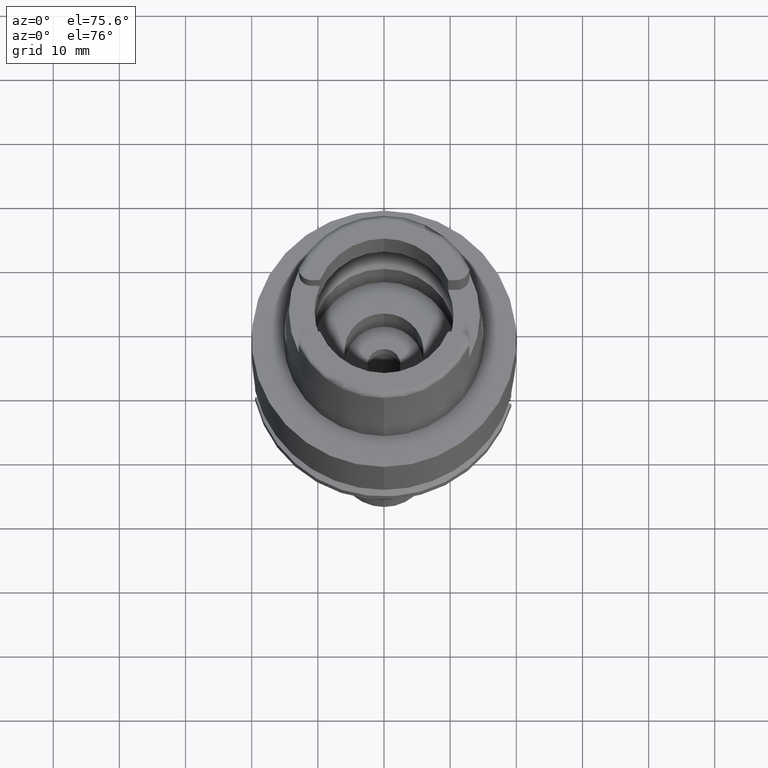
[diagram: clean part render]
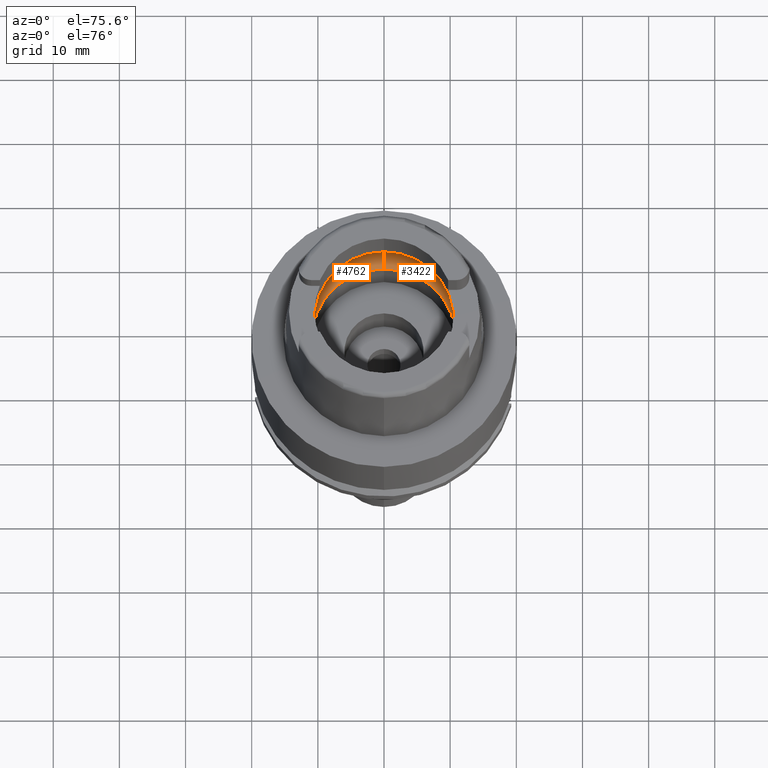
[diagram: same view with one multi-face feature highlighted, each face labeled with its STEP entity id]
A machine part, auxiliary view. The highlighted faces form ONE feature: a constant-radius fillet chain: 2 tangent blend faces with common blend radius 5 mm. The faces share edges in the B-rep.
Their STEP definitions:
[1] entity #3422 (Torus):
#13 = CARTESIAN_POINT ( 'NONE',  ( 0.0000000000000000000, 1.272815980657999902E-14, 3.933312163512999504 ) ) ;
#20 = AXIS2_PLACEMENT_3D ( 'NONE', #3113, #2683, #3487 ) ;
#76 = CARTESIAN_POINT ( 'NONE',  ( 12.74221291684999890, -0.3492184789958999724, 3.717717192588000152 ) ) ;
#383 = AXIS2_PLACEMENT_3D ( 'NONE', #3685, #1278, #1657 ) ;
#504 = CIRCLE ( 'NONE', #1451, 10.90000000000000036 ) ;
#508 = CARTESIAN_POINT ( 'NONE',  ( 12.74455357708000136, 0.1164895916260999947, 3.700000000000000178 ) ) ;
#532 = ORIENTED_EDGE ( 'NONE', *, *, #3559, .F. ) ;
#633 = ORIENTED_EDGE ( 'NONE', *, *, #4525, .F. ) ;
#662 = CARTESIAN_POINT ( 'NONE',  ( 12.74455357708000136, 0.0000000000000000000, 3.700000000000000178 ) ) ;
#683 = CARTESIAN_POINT ( 'NONE',  ( 12.70998420979999999, -1.009356917307999923, 3.933312163512999504 ) ) ;
#691 = EDGE_CURVE ( 'NONE', #2313, #928, #2405, .T. ) ;
#743 = CARTESIAN_POINT ( 'NONE',  ( 0.0000000000000000000, 1.272815980657999902E-14, 3.933312163512999504 ) ) ;
#847 = CARTESIAN_POINT ( 'NONE',  ( 12.70998420979999999, -1.009356917307999923, 3.933312163512999504 ) ) ;
#864 = DIRECTION ( 'NONE',  ( 0.0000000000000000000, -1.000000000000000000, 0.0000000000000000000 ) ) ;
#928 = VERTEX_POINT ( 'NONE', #2906 ) ;
#1278 = DIRECTION ( 'NONE',  ( 1.000000000000000000, 0.0000000000000000000, 0.0000000000000000000 ) ) ;
#1451 = AXIS2_PLACEMENT_3D ( 'NONE', #3326, #3649, #864 ) ;
#1495 = CIRCLE ( 'NONE', #4060, 12.75000000000000000 ) ;
#1522 = ORIENTED_EDGE ( 'NONE', *, *, #691, .F. ) ;
#1657 = DIRECTION ( 'NONE',  ( 0.0000000000000000000, 0.6299999999999791322, -0.7765951326141738997 ) ) ;
#1701 = CARTESIAN_POINT ( 'NONE',  ( 12.74455357708000136, 0.0000000000000000000, 3.700000000000000178 ) ) ;
#1757 = CARTESIAN_POINT ( 'NONE',  ( 0.0000000000000000000, -10.90000000000000036, 0.05033650044222000297 ) ) ;
#1852 = EDGE_CURVE ( 'NONE', #3438, #3245, #2926, .T. ) ;
#1938 = CARTESIAN_POINT ( 'NONE',  ( 12.70998420979999999, 1.009356917307000057, 3.933312163512999504 ) ) ;
#2040 = CARTESIAN_POINT ( 'NONE',  ( 12.74221291712999893, 0.3492178183419999971, 3.717717179960999818 ) ) ;
#2313 = VERTEX_POINT ( 'NONE', #4342 ) ;
#2360 = DIRECTION ( 'NONE',  ( 0.0000000000000000000, -1.000000000000000000, 0.0000000000000000000 ) ) ;
#2368 = VERTEX_POINT ( 'NONE', #683 ) ;
#2405 = CIRCLE ( 'NONE', #383, 5.000000000000000888 ) ;
#2464 = CARTESIAN_POINT ( 'NONE',  ( 12.70998420979999999, 1.009356917307000057, 3.933312163512999504 ) ) ;
#2592 = ORIENTED_EDGE ( 'NONE', *, *, #4478, .T. ) ;
#2683 = DIRECTION ( 'NONE',  ( -1.000000000000000000, 0.0000000000000000000, 0.0000000000000000000 ) ) ;
#2750 = CIRCLE ( 'NONE', #3694, 12.75000000000000533 ) ;
#2794 = ORIENTED_EDGE ( 'NONE', *, *, #5023, .F. ) ;
#2838 = DIRECTION ( 'NONE',  ( 0.0000000000000000000, 0.0000000000000000000, -1.000000000000000000 ) ) ;
#2906 = CARTESIAN_POINT ( 'NONE',  ( 0.0000000000000000000, 12.75000000000000000, 3.933312163512999504 ) ) ;
#2921 = CARTESIAN_POINT ( 'NONE',  ( 12.71822602740000185, -0.9055746280688999894, 3.882625567459000226 ) ) ;
#2926 = B_SPLINE_CURVE_WITH_KNOTS ( 'NONE', 3,
 ( #2464, #2955, #3253, #2040, #508, #1701 ),
 .UNSPECIFIED., .F., .F.,
 ( 4, 1, 1, 4 ),
 ( 0.0000000000000000000, 0.3333333333333000081, 0.6666666666667000474, 1.000000000000000000 ),
 .UNSPECIFIED. ) ;
#2955 = CARTESIAN_POINT ( 'NONE',  ( 12.71822610548000121, 0.9055736448555999907, 3.882625087264000019 ) ) ;
#2976 = VERTEX_POINT ( 'NONE', #1757 ) ;
#3087 = DIRECTION ( 'NONE',  ( 0.0000000000000000000, 1.000000000000000000, 0.0000000000000000000 ) ) ;
#3113 = CARTESIAN_POINT ( 'NONE',  ( 0.0000000000000000000, -7.750000000000000000, 3.933312163512999504 ) ) ;
#3124 = TOROIDAL_SURFACE ( 'NONE', #4481, 7.750000000000000000, 5.000000000000000000 ) ;
#3149 = DIRECTION ( 'NONE',  ( 0.0000000000000000000, 0.0000000000000000000, -1.000000000000000000 ) ) ;
#3213 = B_SPLINE_CURVE_WITH_KNOTS ( 'NONE', 3,
 ( #662, #5034, #76, #4110, #2921, #847 ),
 .UNSPECIFIED., .F., .F.,
 ( 4, 1, 1, 4 ),
 ( 0.0000000000000000000, 0.3333333333333000081, 0.6666666666667000474, 1.000000000000000000 ),
 .UNSPECIFIED. ) ;
#3245 = VERTEX_POINT ( 'NONE', #4850 ) ;
#3253 = CARTESIAN_POINT ( 'NONE',  ( 12.73125754741000115, 0.6899575664910999606, 3.796706144840999997 ) ) ;
#3326 = CARTESIAN_POINT ( 'NONE',  ( 0.0000000000000000000, 1.272815980657999902E-14, 0.05033650044222000297 ) ) ;
#3393 = EDGE_CURVE ( 'NONE', #928, #3438, #1495, .T. ) ;
#3422 = ADVANCED_FACE ( 'NONE', ( #4898 ), #3124, .F. ) ;
#3438 = VERTEX_POINT ( 'NONE', #1938 ) ;
#3487 = DIRECTION ( 'NONE',  ( 0.0000000000000000000, -0.6299999999999791322, -0.7765951326141738997 ) ) ;
#3559 = EDGE_CURVE ( 'NONE', #2368, #3910, #2750, .T. ) ;
#3649 = DIRECTION ( 'NONE',  ( 0.0000000000000000000, 0.0000000000000000000, 1.000000000000000000 ) ) ;
#3671 = DIRECTION ( 'NONE',  ( 0.0000000000000000000, 0.0000000000000000000, -1.000000000000000000 ) ) ;
#3685 = CARTESIAN_POINT ( 'NONE',  ( 0.0000000000000000000, 7.750000000000000000, 3.933312163512999504 ) ) ;
#3694 = AXIS2_PLACEMENT_3D ( 'NONE', #743, #3671, #4003 ) ;
#3768 = ORIENTED_EDGE ( 'NONE', *, *, #1852, .F. ) ;
#3910 = VERTEX_POINT ( 'NONE', #5094 ) ;
#4003 = DIRECTION ( 'NONE',  ( 0.9968615066513395462, -0.07916524841634305087, 0.0000000000000000000 ) ) ;
#4060 = AXIS2_PLACEMENT_3D ( 'NONE', #5180, #3149, #3087 ) ;
#4110 = CARTESIAN_POINT ( 'NONE',  ( 12.73125744058999942, -0.6899600012526999615, 3.796706888550000158 ) ) ;
#4331 = EDGE_LOOP ( 'NONE', ( #3768, #4382, #1522, #2794, #2592, #532, #633 ) ) ;
#4342 = CARTESIAN_POINT ( 'NONE',  ( 0.0000000000000000000, 10.90000000000000036, 0.05033650044222000297 ) ) ;
#4382 = ORIENTED_EDGE ( 'NONE', *, *, #3393, .F. ) ;
#4478 = EDGE_CURVE ( 'NONE', #2976, #3910, #4797, .T. ) ;
#4481 = AXIS2_PLACEMENT_3D ( 'NONE', #13, #2838, #2360 ) ;
#4525 = EDGE_CURVE ( 'NONE', #3245, #2368, #3213, .T. ) ;
#4797 = CIRCLE ( 'NONE', #20, 5.000000000000000888 ) ;
#4850 = CARTESIAN_POINT ( 'NONE',  ( 12.74455357708000136, 0.0000000000000000000, 3.700000000000000178 ) ) ;
#4898 = FACE_OUTER_BOUND ( 'NONE', #4331, .T. ) ;
#5023 = EDGE_CURVE ( 'NONE', #2976, #2313, #504, .T. ) ;
#5034 = CARTESIAN_POINT ( 'NONE',  ( 12.74455357708000136, -0.1164898603219999829, 3.700000000000000178 ) ) ;
#5094 = CARTESIAN_POINT ( 'NONE',  ( 0.0000000000000000000, -12.75000000000000000, 3.933312163512999504 ) ) ;
#5180 = CARTESIAN_POINT ( 'NONE',  ( 0.0000000000000000000, 1.272815980657999902E-14, 3.933312163512999504 ) ) ;
[2] entity #4762 (Torus):
#20 = AXIS2_PLACEMENT_3D ( 'NONE', #3113, #2683, #3487 ) ;
#271 = DIRECTION ( 'NONE',  ( 0.0000000000000000000, 0.0000000000000000000, -1.000000000000000000 ) ) ;
#316 = VERTEX_POINT ( 'NONE', #2246 ) ;
#329 = DIRECTION ( 'NONE',  ( 0.0000000000000000000, 0.0000000000000000000, -1.000000000000000000 ) ) ;
#352 = CARTESIAN_POINT ( 'NONE',  ( -12.74221290559999886, 0.3492184865941000416, 3.717717267404999859 ) ) ;
#383 = AXIS2_PLACEMENT_3D ( 'NONE', #3685, #1278, #1657 ) ;
#400 = CARTESIAN_POINT ( 'NONE',  ( -12.74455357708000136, 0.1164898789877999996, 3.700000000000000178 ) ) ;
#456 = EDGE_CURVE ( 'NONE', #2313, #2976, #4381, .T. ) ;
#546 = CARTESIAN_POINT ( 'NONE',  ( -12.73125747192000112, -0.6899593579563000345, 3.796706671708999892 ) ) ;
#604 = EDGE_LOOP ( 'NONE', ( #3016, #1437, #2729, #1184, #2520, #1892, #1124 ) ) ;
#691 = EDGE_CURVE ( 'NONE', #2313, #928, #2405, .T. ) ;
#894 = B_SPLINE_CURVE_WITH_KNOTS ( 'NONE', 3,
 ( #1639, #400, #352, #5275, #3648, #2408 ),
 .UNSPECIFIED., .F., .F.,
 ( 4, 1, 1, 4 ),
 ( 0.0000000000000000000, 0.3333333333333000081, 0.6666666666667000474, 1.000000000000000000 ),
 .UNSPECIFIED. ) ;
#928 = VERTEX_POINT ( 'NONE', #2906 ) ;
#1078 = AXIS2_PLACEMENT_3D ( 'NONE', #1880, #329, #1856 ) ;
#1124 = ORIENTED_EDGE ( 'NONE', *, *, #2645, .F. ) ;
#1184 = ORIENTED_EDGE ( 'NONE', *, *, #691, .T. ) ;
#1278 = DIRECTION ( 'NONE',  ( 1.000000000000000000, 0.0000000000000000000, 0.0000000000000000000 ) ) ;
#1361 = CARTESIAN_POINT ( 'NONE',  ( -12.70998420979999999, -1.009356917307999923, 3.933312163512999504 ) ) ;
#1404 = VERTEX_POINT ( 'NONE', #3764 ) ;
#1437 = ORIENTED_EDGE ( 'NONE', *, *, #4478, .F. ) ;
#1592 = CIRCLE ( 'NONE', #4581, 12.75000000000000000 ) ;
#1639 = CARTESIAN_POINT ( 'NONE',  ( -12.74455357708000136, 0.0000000000000000000, 3.700000000000000178 ) ) ;
#1657 = DIRECTION ( 'NONE',  ( 0.0000000000000000000, 0.6299999999999791322, -0.7765951326141738997 ) ) ;
#1727 = TOROIDAL_SURFACE ( 'NONE', #3606, 7.750000000000000000, 5.000000000000000000 ) ;
#1757 = CARTESIAN_POINT ( 'NONE',  ( 0.0000000000000000000, -10.90000000000000036, 0.05033650044222000297 ) ) ;
#1856 = DIRECTION ( 'NONE',  ( -0.9968615066513395462, 0.07916524841634305087, 0.0000000000000000000 ) ) ;
#1858 = FACE_OUTER_BOUND ( 'NONE', #604, .T. ) ;
#1880 = CARTESIAN_POINT ( 'NONE',  ( 0.0000000000000000000, 1.272815980657999902E-14, 3.933312163512999504 ) ) ;
#1892 = ORIENTED_EDGE ( 'NONE', *, *, #3461, .F. ) ;
#2170 = CIRCLE ( 'NONE', #1078, 12.75000000000000533 ) ;
#2245 = EDGE_CURVE ( 'NONE', #3910, #2289, #1592, .T. ) ;
#2246 = CARTESIAN_POINT ( 'NONE',  ( -12.74455357708000136, 0.0000000000000000000, 3.700000000000000178 ) ) ;
#2276 = DIRECTION ( 'NONE',  ( 0.0000000000000000000, -1.000000000000000000, 0.0000000000000000000 ) ) ;
#2289 = VERTEX_POINT ( 'NONE', #3890 ) ;
#2313 = VERTEX_POINT ( 'NONE', #4342 ) ;
#2353 = DIRECTION ( 'NONE',  ( 0.0000000000000000000, 1.000000000000000000, 0.0000000000000000000 ) ) ;
#2405 = CIRCLE ( 'NONE', #383, 5.000000000000000888 ) ;
#2408 = CARTESIAN_POINT ( 'NONE',  ( -12.70998420979999999, 1.009356917307999923, 3.933312163512999504 ) ) ;
#2520 = ORIENTED_EDGE ( 'NONE', *, *, #3361, .F. ) ;
#2633 = CARTESIAN_POINT ( 'NONE',  ( 0.0000000000000000000, 1.272815980657999902E-14, 3.933312163512999504 ) ) ;
#2645 = EDGE_CURVE ( 'NONE', #2289, #316, #3992, .T. ) ;
#2683 = DIRECTION ( 'NONE',  ( -1.000000000000000000, 0.0000000000000000000, 0.0000000000000000000 ) ) ;
#2729 = ORIENTED_EDGE ( 'NONE', *, *, #456, .F. ) ;
#2906 = CARTESIAN_POINT ( 'NONE',  ( 0.0000000000000000000, 12.75000000000000000, 3.933312163512999504 ) ) ;
#2976 = VERTEX_POINT ( 'NONE', #1757 ) ;
#2988 = CARTESIAN_POINT ( 'NONE',  ( -12.74455357708000136, 0.0000000000000000000, 3.700000000000000178 ) ) ;
#3016 = ORIENTED_EDGE ( 'NONE', *, *, #2245, .F. ) ;
#3113 = CARTESIAN_POINT ( 'NONE',  ( 0.0000000000000000000, -7.750000000000000000, 3.933312163512999504 ) ) ;
#3219 = DIRECTION ( 'NONE',  ( 0.0000000000000000000, 0.0000000000000000000, 1.000000000000000000 ) ) ;
#3315 = CARTESIAN_POINT ( 'NONE',  ( -12.74455357708000136, -0.1164895712142999945, 3.700000000000000178 ) ) ;
#3361 = EDGE_CURVE ( 'NONE', #1404, #928, #2170, .T. ) ;
#3461 = EDGE_CURVE ( 'NONE', #316, #1404, #894, .T. ) ;
#3487 = DIRECTION ( 'NONE',  ( 0.0000000000000000000, -0.6299999999999791322, -0.7765951326141738997 ) ) ;
#3525 = AXIS2_PLACEMENT_3D ( 'NONE', #4439, #3219, #2353 ) ;
#3606 = AXIS2_PLACEMENT_3D ( 'NONE', #2633, #271, #3872 ) ;
#3648 = CARTESIAN_POINT ( 'NONE',  ( -12.71822608499000040, 0.9055739029613000257, 3.882625213320999968 ) ) ;
#3685 = CARTESIAN_POINT ( 'NONE',  ( 0.0000000000000000000, 7.750000000000000000, 3.933312163512999504 ) ) ;
#3764 = CARTESIAN_POINT ( 'NONE',  ( -12.70998420979999999, 1.009356917307999923, 3.933312163512999504 ) ) ;
#3872 = DIRECTION ( 'NONE',  ( 0.0000000000000000000, -1.000000000000000000, 0.0000000000000000000 ) ) ;
#3890 = CARTESIAN_POINT ( 'NONE',  ( -12.70998420979999999, -1.009356917307999923, 3.933312163512999504 ) ) ;
#3910 = VERTEX_POINT ( 'NONE', #5094 ) ;
#3992 = B_SPLINE_CURVE_WITH_KNOTS ( 'NONE', 3,
 ( #1361, #4512, #546, #5022, #3315, #2988 ),
 .UNSPECIFIED., .F., .F.,
 ( 4, 1, 1, 4 ),
 ( 0.0000000000000000000, 0.3333333333333000081, 0.6666666666667000474, 1.000000000000000000 ),
 .UNSPECIFIED. ) ;
#4342 = CARTESIAN_POINT ( 'NONE',  ( 0.0000000000000000000, 10.90000000000000036, 0.05033650044222000297 ) ) ;
#4365 = DIRECTION ( 'NONE',  ( 0.0000000000000000000, 0.0000000000000000000, -1.000000000000000000 ) ) ;
#4381 = CIRCLE ( 'NONE', #3525, 10.90000000000000036 ) ;
#4439 = CARTESIAN_POINT ( 'NONE',  ( 0.0000000000000000000, 1.272815980657999902E-14, 0.05033650044222000297 ) ) ;
#4478 = EDGE_CURVE ( 'NONE', #2976, #3910, #4797, .T. ) ;
#4512 = CARTESIAN_POINT ( 'NONE',  ( -12.71822604802000001, -0.9055743684054998743, 3.882625440641000125 ) ) ;
#4581 = AXIS2_PLACEMENT_3D ( 'NONE', #4766, #4365, #2276 ) ;
#4762 = ADVANCED_FACE ( 'NONE', ( #1858 ), #1727, .F. ) ;
#4766 = CARTESIAN_POINT ( 'NONE',  ( 0.0000000000000000000, 1.272815980657999902E-14, 3.933312163512999504 ) ) ;
#4797 = CIRCLE ( 'NONE', #20, 5.000000000000000888 ) ;
#5022 = CARTESIAN_POINT ( 'NONE',  ( -12.74221292844000075, -0.3492178066839999873, 3.717717104612000334 ) ) ;
#5094 = CARTESIAN_POINT ( 'NONE',  ( 0.0000000000000000000, -12.75000000000000000, 3.933312163512999504 ) ) ;
#5275 = CARTESIAN_POINT ( 'NONE',  ( -12.73125751627000035, 0.6899582059268000167, 3.796706360378999889 ) ) ;